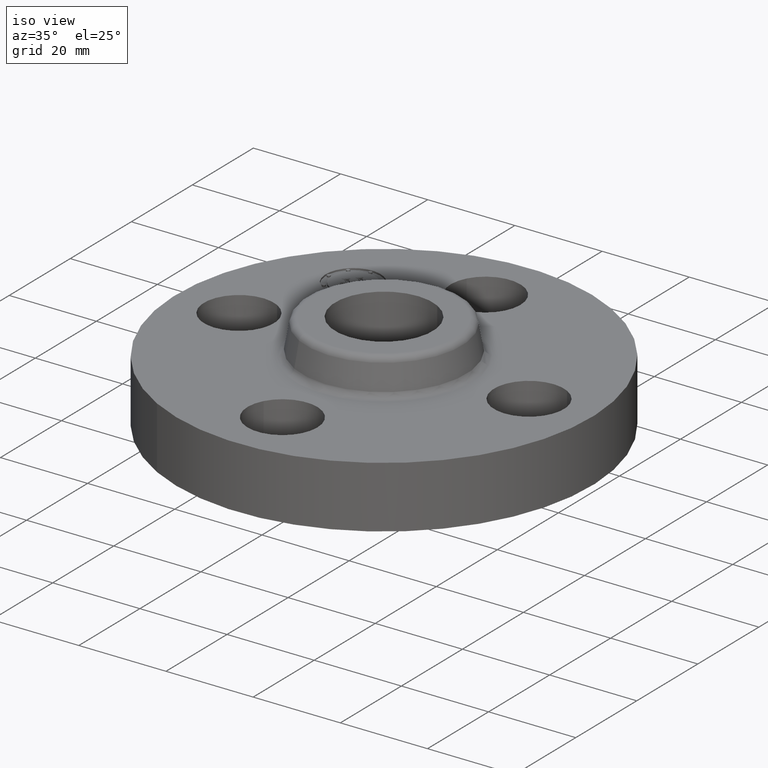
[diagram: clean part render]
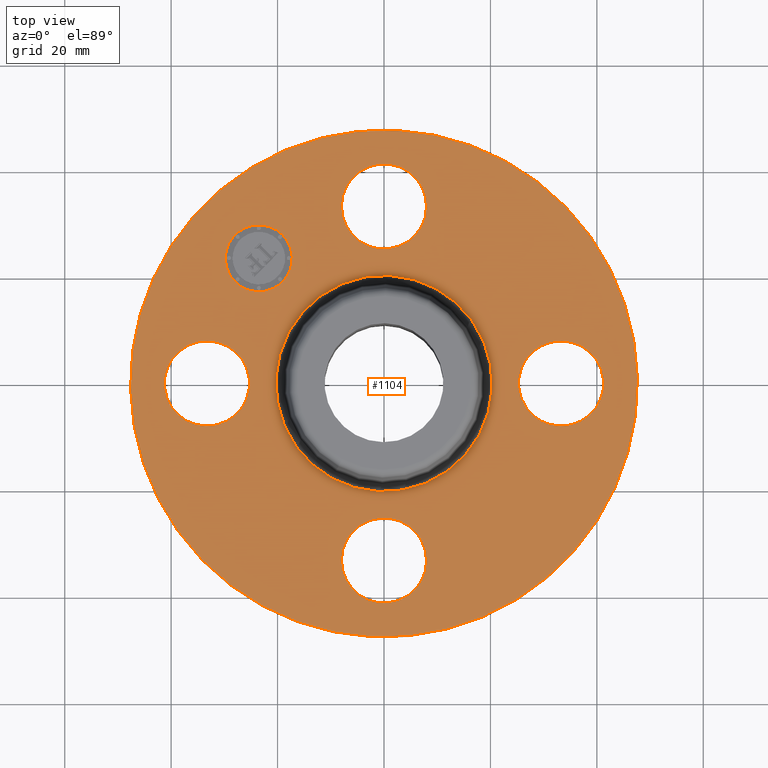
[diagram: tour spotlight — one face highlighted and labeled with its STEP entity id]
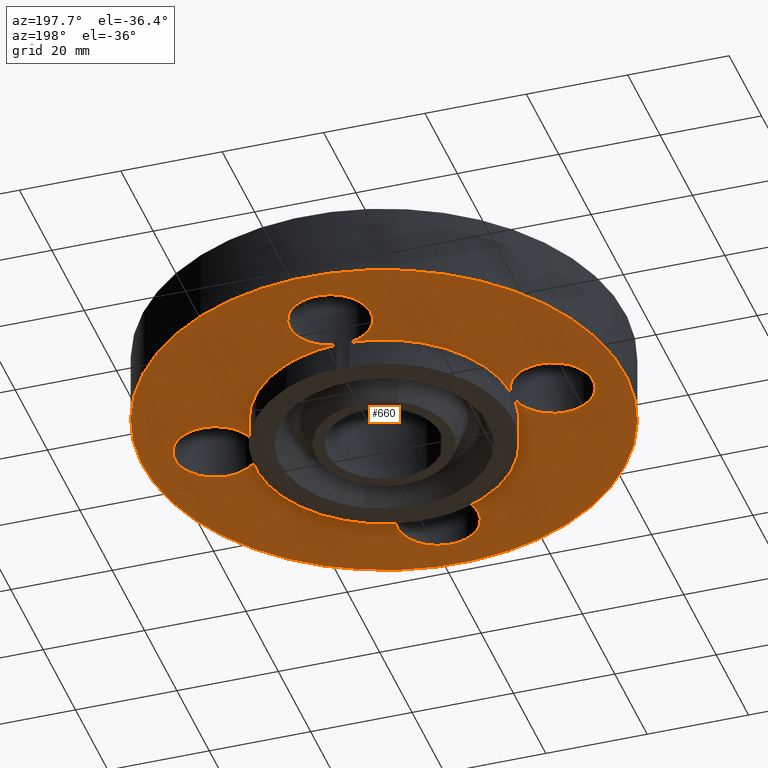
[diagram: tour spotlight — one face highlighted and labeled with its STEP entity id]
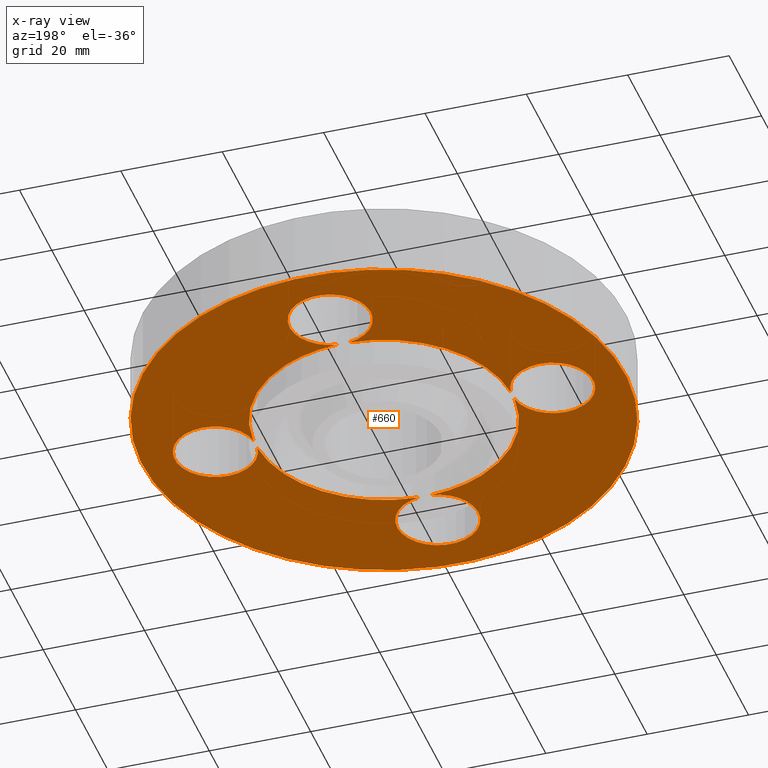
[diagram: x-ray of the same camera — body ghosted, this tour face saturated]
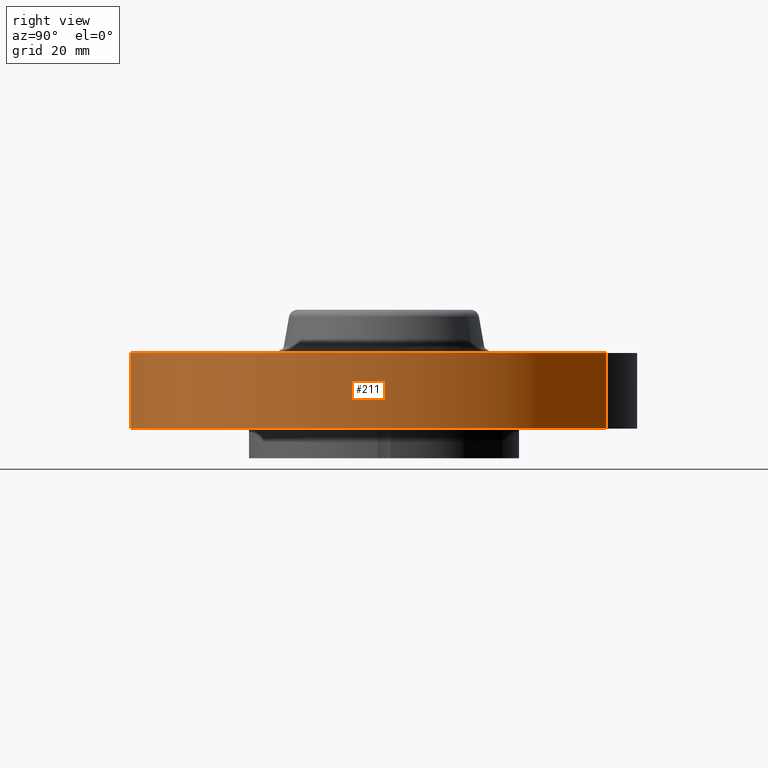
[diagram: tour spotlight — one face highlighted and labeled with its STEP entity id]
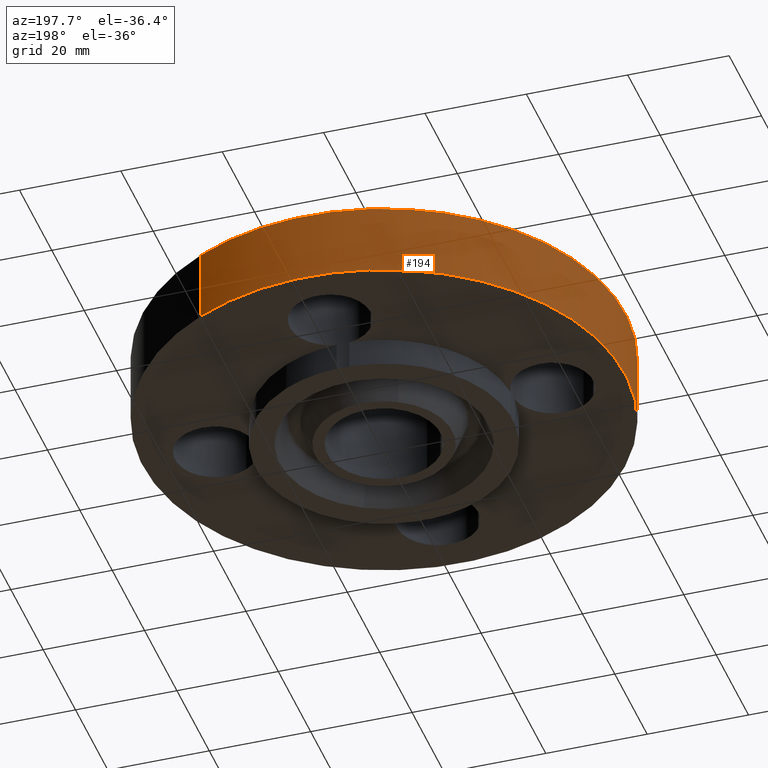
[diagram: tour spotlight — one face highlighted and labeled with its STEP entity id]
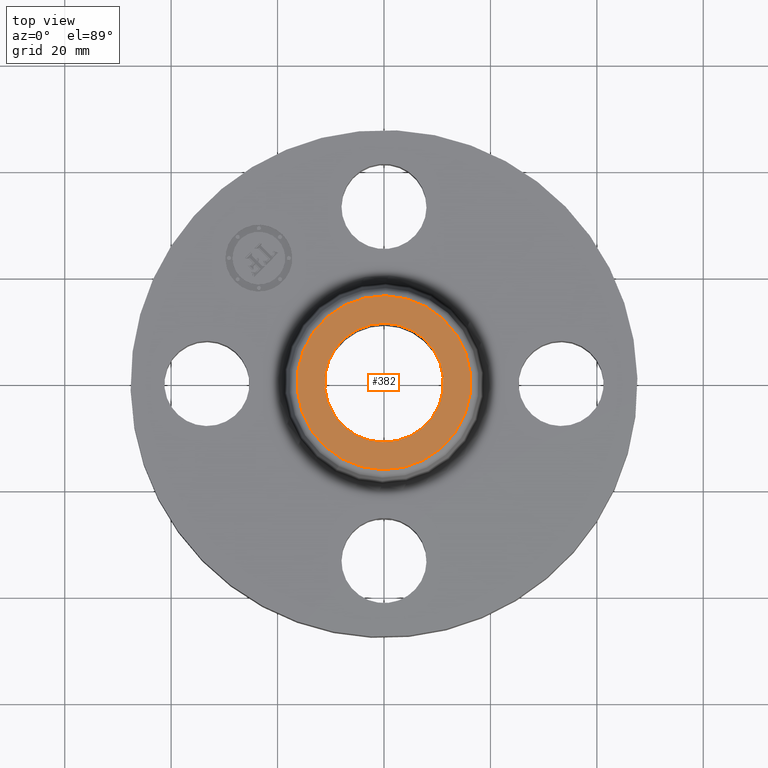
[diagram: tour spotlight — one face highlighted and labeled with its STEP entity id]
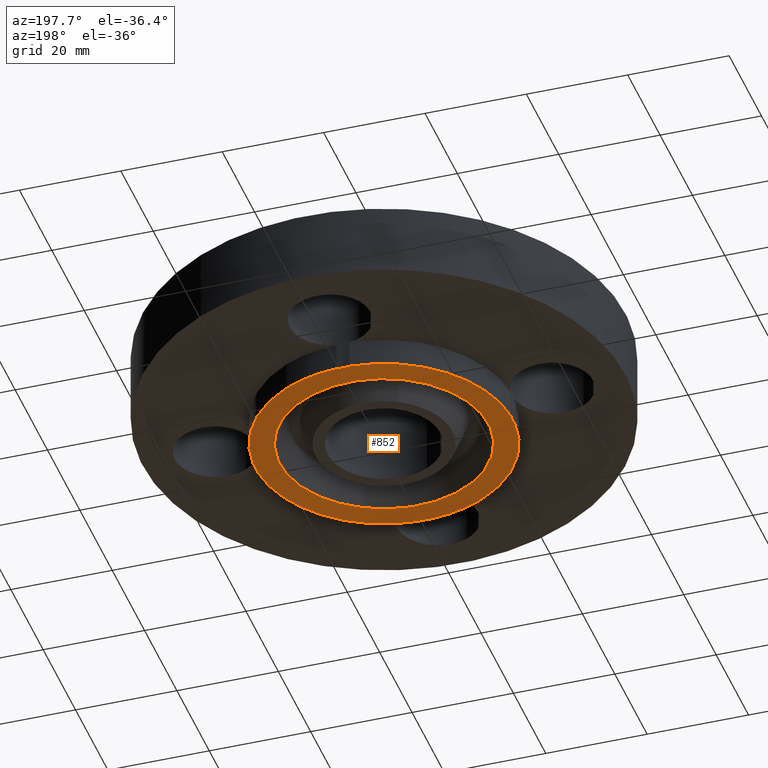
[diagram: tour spotlight — one face highlighted and labeled with its STEP entity id]
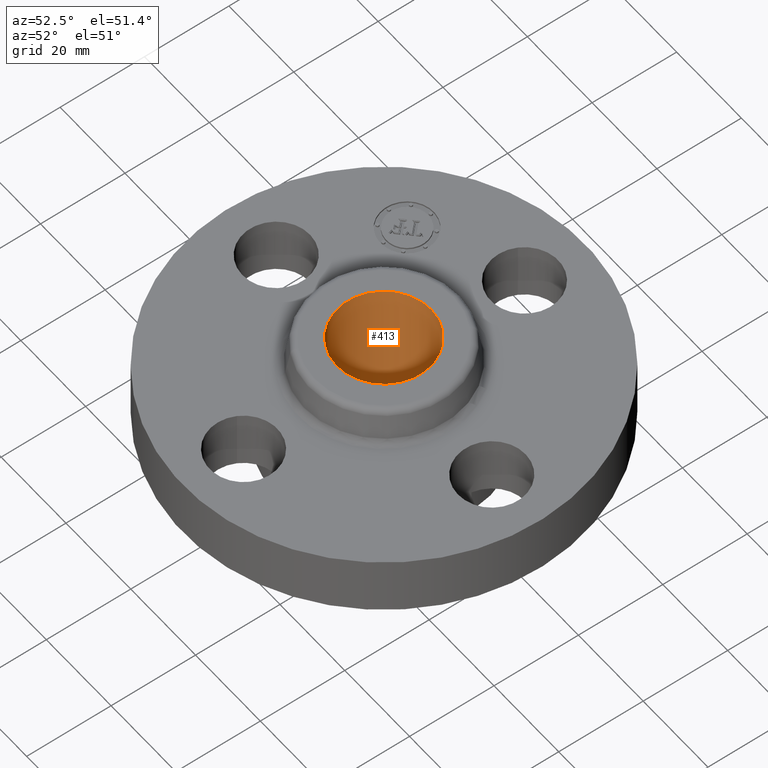
[diagram: tour spotlight — one face highlighted and labeled with its STEP entity id]
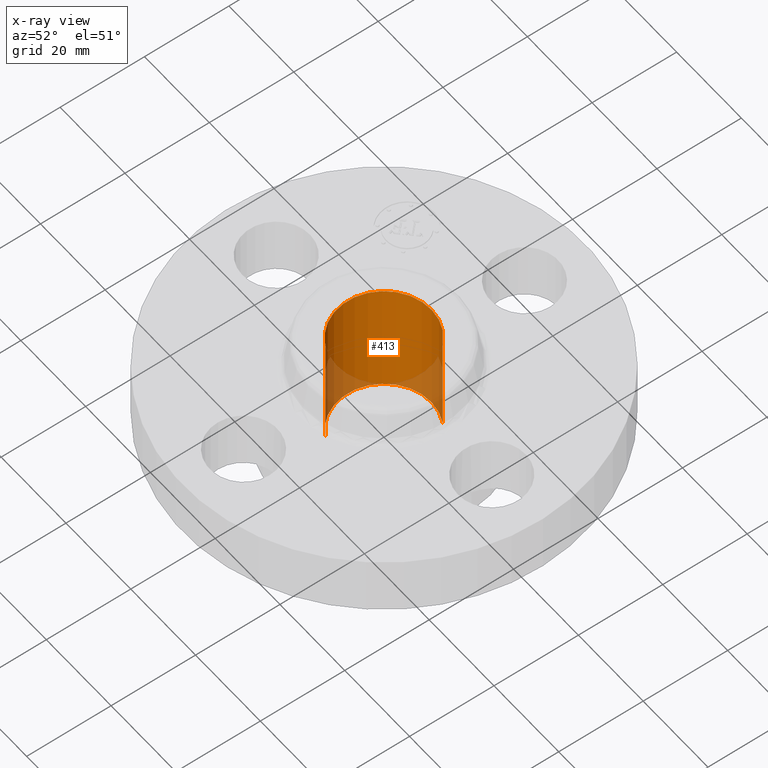
[diagram: x-ray of the same camera — body ghosted, this tour face saturated]
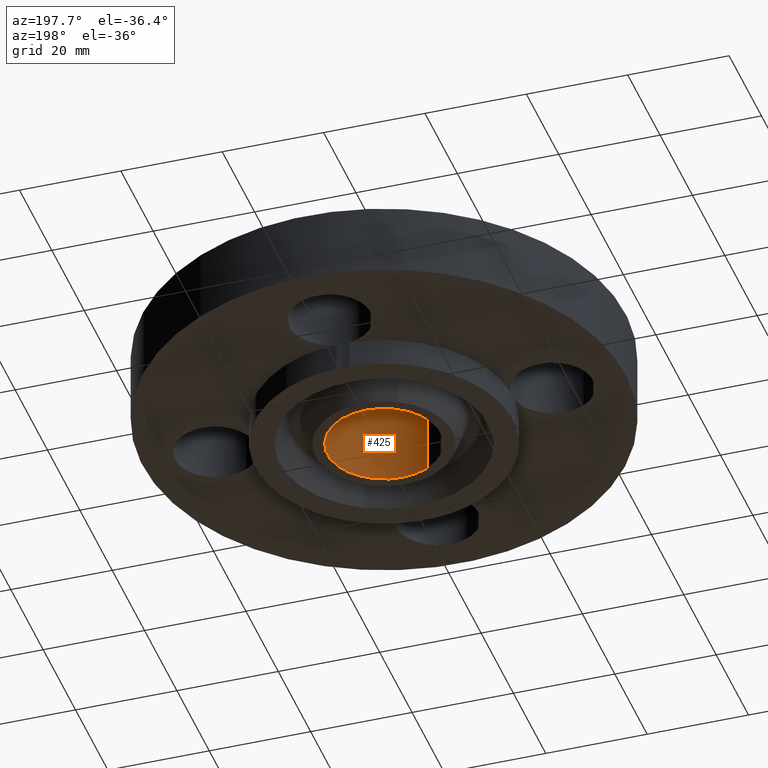
[diagram: tour spotlight — one face highlighted and labeled with its STEP entity id]
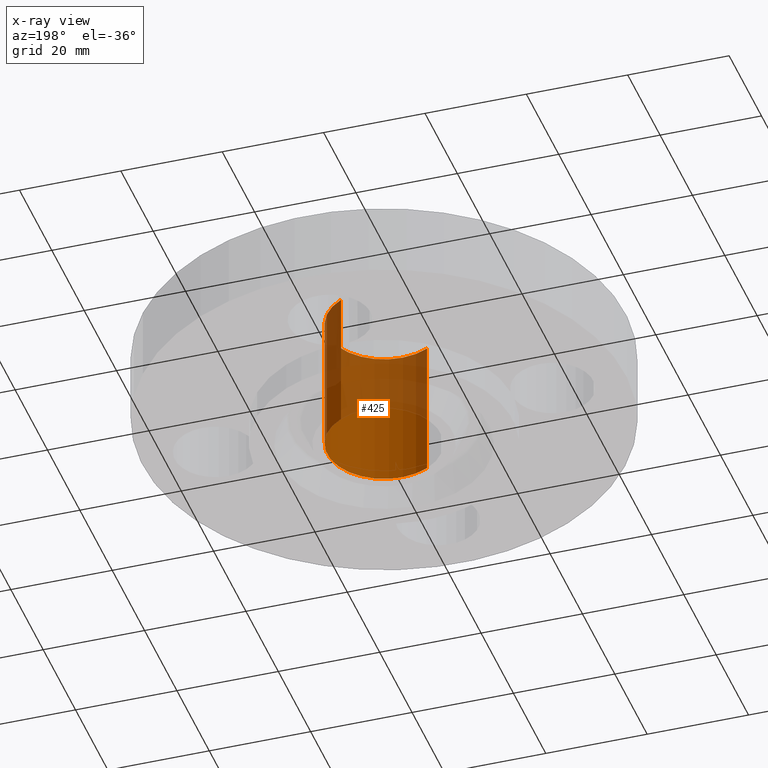
[diagram: x-ray of the same camera — body ghosted, this tour face saturated]
A machine part: a face-by-face anatomy tour. The part has 423 B-rep faces; the first image is the clean iso view, then the 8 largest visible faces are spotlighted one at a time (largest first), each with its STEP entity span.

Face 1 — top view, entity #1104. In plain terms, the highlighted planar face has unit normal (0, 0, -1).
Definition (entity closure, byte-faithful):
#65=AXIS2_PLACEMENT_3D('Circle Axis2P3D',#63,#64,$) ;
#110=AXIS2_PLACEMENT_3D('Circle Axis2P3D',#108,#109,$) ;
#178=AXIS2_PLACEMENT_3D('Circle Axis2P3D',#176,#177,$) ;
#202=AXIS2_PLACEMENT_3D('Circle Axis2P3D',#200,#201,$) ;
#219=AXIS2_PLACEMENT_3D('Circle Axis2P3D',#217,#218,$) ;
#254=AXIS2_PLACEMENT_3D('Circle Axis2P3D',#252,#253,$) ;
#682=AXIS2_PLACEMENT_3D('Circle Axis2P3D',#680,#681,$) ;
#699=AXIS2_PLACEMENT_3D('Circle Axis2P3D',#697,#698,$) ;
#734=AXIS2_PLACEMENT_3D('Circle Axis2P3D',#732,#733,$) ;
#751=AXIS2_PLACEMENT_3D('Circle Axis2P3D',#749,#750,$) ;
#786=AXIS2_PLACEMENT_3D('Circle Axis2P3D',#784,#785,$) ;
#803=AXIS2_PLACEMENT_3D('Circle Axis2P3D',#801,#802,$) ;
#1060=AXIS2_PLACEMENT_3D('Plane Axis2P3D',#1057,#1058,#1059) ;
#1088=AXIS2_PLACEMENT_3D('Circle Axis2P3D',#1086,#1087,$) ;
#1097=AXIS2_PLACEMENT_3D('Circle Axis2P3D',#1095,#1096,$) ;
#46=CARTESIAN_POINT('Vertex',(-0.276438506997,1.46101904467,0.560000000002)) ;
#60=CARTESIAN_POINT('Vertex',(0.276438506997,1.15898095534,0.560000000002)) ;
#63=CARTESIAN_POINT('Axis2P3D Location',(0.,1.31000000001,0.560000000002)) ;
#108=CARTESIAN_POINT('Axis2P3D Location',(0.,1.31000000001,0.560000000002)) ;
#173=CARTESIAN_POINT('Vertex',(-0.898922884886,-1.64546730355,0.560000000002)) ;
#176=CARTESIAN_POINT('Axis2P3D Location',(0.,0.,0.560000000002)) ;
#180=CARTESIAN_POINT('Vertex',(0.898922884886,1.64546730355,0.560000000002)) ;
#200=CARTESIAN_POINT('Axis2P3D Location',(0.,0.,0.560000000002)) ;
#217=CARTESIAN_POINT('Axis2P3D Location',(0.,0.,0.560000000002)) ;
#221=CARTESIAN_POINT('Vertex',(0.383706301512,0.702369673661,0.560000000002)) ;
#223=CARTESIAN_POINT('Vertex',(-0.383706301512,-0.702369673661,0.560000000002)) ;
#252=CARTESIAN_POINT('Axis2P3D Location',(0.,0.,0.560000000002)) ;
#670=CARTESIAN_POINT('Vertex',(1.46101904467,0.276438506997,0.560000000002)) ;
#677=CARTESIAN_POINT('Vertex',(1.15898095534,-0.276438506997,0.560000000002)) ;
#680=CARTESIAN_POINT('Axis2P3D Location',(1.31000000001,8.02143653445E-017,0.560000000002)) ;
#697=CARTESIAN_POINT('Axis2P3D Location',(1.31000000001,8.02143653445E-017,0.560000000002)) ;
#722=CARTESIAN_POINT('Vertex',(0.276438506997,-1.46101904467,0.560000000002)) ;
#729=CARTESIAN_POINT('Vertex',(-0.276438506997,-1.15898095534,0.560000000002)) ;
#732=CARTESIAN_POINT('Axis2P3D Location',(1.60428730689E-016,-1.31000000001,0.560000000002)) ;
#749=CARTESIAN_POINT('Axis2P3D Location',(1.60428730689E-016,-1.31000000001,0.560000000002)) ;
#774=CARTESIAN_POINT('Vertex',(-1.46101904467,-0.276438506997,0.560000000002)) ;
#781=CARTESIAN_POINT('Vertex',(-1.15898095534,0.276438506997,0.560000000002)) ;
#784=CARTESIAN_POINT('Axis2P3D Location',(-1.31000000001,-2.40643096033E-016,0.560000000002)) ;
#801=CARTESIAN_POINT('Axis2P3D Location',(-1.31000000001,-2.40643096033E-016,0.560000000002)) ;
#1057=CARTESIAN_POINT('Axis2P3D Location',(0.,1.87500000001,0.560000000002)) ;
#1086=CARTESIAN_POINT('Axis2P3D Location',(-0.926309883358,0.926309883358,0.560000000002)) ;
#1090=CARTESIAN_POINT('Vertex',(-1.1013188117,0.751300955014,0.560000000002)) ;
#1092=CARTESIAN_POINT('Vertex',(-0.751300955014,1.1013188117,0.560000000002)) ;
#1095=CARTESIAN_POINT('Axis2P3D Location',(-0.926309883358,0.926309883358,0.560000000002)) ;
#64=DIRECTION('Axis2P3D Direction',(0.,-0.,-0.0393700787402)) ;
#109=DIRECTION('Axis2P3D Direction',(0.,-0.,-0.0393700787402)) ;
#177=DIRECTION('Axis2P3D Direction',(0.,0.,-0.0393700787402)) ;
#201=DIRECTION('Axis2P3D Direction',(0.,0.,-0.0393700787402)) ;
#218=DIRECTION('Axis2P3D Direction',(0.,0.,-0.0393700787402)) ;
#253=DIRECTION('Axis2P3D Direction',(0.,0.,-0.0393700787402)) ;
#681=DIRECTION('Axis2P3D Direction',(0.,-0.,-0.0393700787402)) ;
#698=DIRECTION('Axis2P3D Direction',(0.,-0.,-0.0393700787402)) ;
#733=DIRECTION('Axis2P3D Direction',(-0.,0.,-0.0393700787402)) ;
#750=DIRECTION('Axis2P3D Direction',(-0.,0.,-0.0393700787402)) ;
#785=DIRECTION('Axis2P3D Direction',(0.,0.,-0.0393700787402)) ;
#802=DIRECTION('Axis2P3D Direction',(0.,0.,-0.0393700787402)) ;
#1058=DIRECTION('Axis2P3D Direction',(0.,0.,-0.0393700787402)) ;
#1059=DIRECTION('Axis2P3D XDirection',(0.0393700787402,0.,0.)) ;
#1087=DIRECTION('Axis2P3D Direction',(0.,0.,-0.0393700787402)) ;
#1096=DIRECTION('Axis2P3D Direction',(0.,0.,-0.0393700787402)) ;
#1063=ORIENTED_EDGE('',*,*,#204,.F.) ;
#1064=ORIENTED_EDGE('',*,*,#182,.F.) ;
#1067=ORIENTED_EDGE('',*,*,#67,.T.) ;
#1068=ORIENTED_EDGE('',*,*,#112,.T.) ;
#1071=ORIENTED_EDGE('',*,*,#256,.T.) ;
#1072=ORIENTED_EDGE('',*,*,#225,.T.) ;
#1075=ORIENTED_EDGE('',*,*,#701,.T.) ;
#1076=ORIENTED_EDGE('',*,*,#684,.T.) ;
#1079=ORIENTED_EDGE('',*,*,#753,.T.) ;
#1080=ORIENTED_EDGE('',*,*,#736,.T.) ;
#1083=ORIENTED_EDGE('',*,*,#805,.T.) ;
#1084=ORIENTED_EDGE('',*,*,#788,.T.) ;
#1101=ORIENTED_EDGE('',*,*,#1094,.T.) ;
#1102=ORIENTED_EDGE('',*,*,#1099,.T.) ;
#1069=FACE_BOUND('',#1066,.T.) ;
#1073=FACE_BOUND('',#1070,.T.) ;
#1077=FACE_BOUND('',#1074,.T.) ;
#1081=FACE_BOUND('',#1078,.T.) ;
#1085=FACE_BOUND('',#1082,.T.) ;
#1103=FACE_BOUND('',#1100,.T.) ;
#1104=ADVANCED_FACE('PartBody',(#1065,#1069,#1073,#1077,#1081,#1085,#1103),#1061,.F.) ;
#66=CIRCLE('generated circle',#65,0.315000000001) ;
#111=CIRCLE('generated circle',#110,0.315000000001) ;
#179=CIRCLE('generated circle',#178,1.87500000001) ;
#203=CIRCLE('generated circle',#202,1.87500000001) ;
#220=CIRCLE('generated circle',#219,0.800345977874) ;
#255=CIRCLE('generated circle',#254,0.800345977874) ;
#683=CIRCLE('generated circle',#682,0.315000000001) ;
#700=CIRCLE('generated circle',#699,0.315000000001) ;
#735=CIRCLE('generated circle',#734,0.315000000001) ;
#752=CIRCLE('generated circle',#751,0.315000000001) ;
#787=CIRCLE('generated circle',#786,0.315000000001) ;
#804=CIRCLE('generated circle',#803,0.315000000001) ;
#1089=CIRCLE('generated circle',#1088,0.247500000001) ;
#1098=CIRCLE('generated circle',#1097,0.247500000001) ;
#67=EDGE_CURVE('',#47,#61,#66,.T.) ;
#112=EDGE_CURVE('',#61,#47,#111,.T.) ;
#182=EDGE_CURVE('',#174,#181,#179,.T.) ;
#204=EDGE_CURVE('',#181,#174,#203,.T.) ;
#225=EDGE_CURVE('',#222,#224,#220,.T.) ;
#256=EDGE_CURVE('',#224,#222,#255,.T.) ;
#684=EDGE_CURVE('',#671,#678,#683,.T.) ;
#701=EDGE_CURVE('',#678,#671,#700,.T.) ;
#736=EDGE_CURVE('',#723,#730,#735,.T.) ;
#753=EDGE_CURVE('',#730,#723,#752,.T.) ;
#788=EDGE_CURVE('',#775,#782,#787,.T.) ;
#805=EDGE_CURVE('',#782,#775,#804,.T.) ;
#1094=EDGE_CURVE('',#1091,#1093,#1089,.T.) ;
#1099=EDGE_CURVE('',#1093,#1091,#1098,.T.) ;
#1062=EDGE_LOOP('',(#1063,#1064)) ;
#1066=EDGE_LOOP('',(#1067,#1068)) ;
#1070=EDGE_LOOP('',(#1071,#1072)) ;
#1074=EDGE_LOOP('',(#1075,#1076)) ;
#1078=EDGE_LOOP('',(#1079,#1080)) ;
#1082=EDGE_LOOP('',(#1083,#1084)) ;
#1100=EDGE_LOOP('',(#1101,#1102)) ;
#1065=FACE_OUTER_BOUND('',#1062,.T.) ;
#1061=PLANE('',#1060) ;
#47=VERTEX_POINT('',#46) ;
#61=VERTEX_POINT('',#60) ;
#174=VERTEX_POINT('',#173) ;
#181=VERTEX_POINT('',#180) ;
#222=VERTEX_POINT('',#221) ;
#224=VERTEX_POINT('',#223) ;
#671=VERTEX_POINT('',#670) ;
#678=VERTEX_POINT('',#677) ;
#723=VERTEX_POINT('',#722) ;
#730=VERTEX_POINT('',#729) ;
#775=VERTEX_POINT('',#774) ;
#782=VERTEX_POINT('',#781) ;
#1091=VERTEX_POINT('',#1090) ;
#1093=VERTEX_POINT('',#1092) ;

Face 2 — auxiliary view, entity #660. An x-ray twin of the same camera follows (body ghosted, this face saturated) — the face is partly hidden behind the body. In plain terms, the highlighted planar face has unit normal (0, 0, -1).
Definition (entity closure, byte-faithful):
#51=AXIS2_PLACEMENT_3D('Circle Axis2P3D',#49,#50,$) ;
#77=AXIS2_PLACEMENT_3D('Circle Axis2P3D',#75,#76,$) ;
#105=AXIS2_PLACEMENT_3D('Circle Axis2P3D',#103,#104,$) ;
#131=AXIS2_PLACEMENT_3D('Circle Axis2P3D',#129,#130,$) ;
#162=AXIS2_PLACEMENT_3D('Circle Axis2P3D',#160,#161,$) ;
#197=AXIS2_PLACEMENT_3D('Circle Axis2P3D',#195,#196,$) ;
#444=AXIS2_PLACEMENT_3D('Circle Axis2P3D',#442,#443,$) ;
#463=AXIS2_PLACEMENT_3D('Circle Axis2P3D',#461,#462,$) ;
#505=AXIS2_PLACEMENT_3D('Circle Axis2P3D',#503,#504,$) ;
#524=AXIS2_PLACEMENT_3D('Circle Axis2P3D',#522,#523,$) ;
#557=AXIS2_PLACEMENT_3D('Circle Axis2P3D',#555,#556,$) ;
#577=AXIS2_PLACEMENT_3D('Plane Axis2P3D',#574,#575,#576) ;
#585=AXIS2_PLACEMENT_3D('Circle Axis2P3D',#583,#584,$) ;
#592=AXIS2_PLACEMENT_3D('Circle Axis2P3D',#590,#591,$) ;
#599=AXIS2_PLACEMENT_3D('Circle Axis2P3D',#597,#598,$) ;
#604=AXIS2_PLACEMENT_3D('Circle Axis2P3D',#602,#603,$) ;
#611=AXIS2_PLACEMENT_3D('Circle Axis2P3D',#609,#610,$) ;
#618=AXIS2_PLACEMENT_3D('Circle Axis2P3D',#616,#617,$) ;
#623=AXIS2_PLACEMENT_3D('Circle Axis2P3D',#621,#622,$) ;
#630=AXIS2_PLACEMENT_3D('Circle Axis2P3D',#628,#629,$) ;
#637=AXIS2_PLACEMENT_3D('Circle Axis2P3D',#635,#636,$) ;
#44=CARTESIAN_POINT('Vertex',(-0.276438506997,1.46101904467,-6.99353086378E-017)) ;
#49=CARTESIAN_POINT('Axis2P3D Location',(0.,1.31000000001,0.)) ;
#53=CARTESIAN_POINT('Vertex',(0.276438506997,1.15898095534,-6.99353086378E-017)) ;
#75=CARTESIAN_POINT('Axis2P3D Location',(0.,1.31000000001,0.)) ;
#79=CARTESIAN_POINT('Vertex',(0.0488269754871,0.998807251912,6.99353086378E-017)) ;
#100=CARTESIAN_POINT('Vertex',(-0.0488269754871,0.998807251912,6.99353086378E-017)) ;
#103=CARTESIAN_POINT('Axis2P3D Location',(0.,1.31000000001,0.)) ;
#129=CARTESIAN_POINT('Axis2P3D Location',(0.,0.,6.99353086378E-017)) ;
#133=CARTESIAN_POINT('Vertex',(0.479425538606,0.877582561894,6.99353086378E-017)) ;
#160=CARTESIAN_POINT('Axis2P3D Location',(0.,0.,6.99353086378E-017)) ;
#164=CARTESIAN_POINT('Vertex',(-0.898922884886,-1.64546730355,6.99353086378E-017)) ;
#166=CARTESIAN_POINT('Vertex',(0.898922884886,1.64546730355,6.99353086378E-017)) ;
#195=CARTESIAN_POINT('Axis2P3D Location',(0.,0.,6.99353086378E-017)) ;
#439=CARTESIAN_POINT('Vertex',(-0.479425538606,-0.877582561894,6.99353086378E-017)) ;
#442=CARTESIAN_POINT('Axis2P3D Location',(0.,0.,6.99353086378E-017)) ;
#446=CARTESIAN_POINT('Vertex',(-0.998807251912,-0.0488269754871,6.99353086378E-017)) ;
#461=CARTESIAN_POINT('Axis2P3D Location',(0.,0.,6.99353086378E-017)) ;
#465=CARTESIAN_POINT('Vertex',(-0.998807251912,0.0488269754871,6.99353086378E-017)) ;
#500=CARTESIAN_POINT('Vertex',(0.998807251912,-0.0488269754871,6.99353086378E-017)) ;
#503=CARTESIAN_POINT('Axis2P3D Location',(0.,0.,6.99353086378E-017)) ;
#507=CARTESIAN_POINT('Vertex',(0.0488269754871,-0.998807251912,6.99353086378E-017)) ;
#522=CARTESIAN_POINT('Axis2P3D Location',(0.,0.,6.99353086378E-017)) ;
#526=CARTESIAN_POINT('Vertex',(-0.0488269754871,-0.998807251912,6.99353086378E-017)) ;
#555=CARTESIAN_POINT('Axis2P3D Location',(0.,0.,6.99353086378E-017)) ;
#559=CARTESIAN_POINT('Vertex',(0.998807251912,0.0488269754871,6.99353086378E-017)) ;
#574=CARTESIAN_POINT('Axis2P3D Location',(0.,1.,0.)) ;
#583=CARTESIAN_POINT('Axis2P3D Location',(1.31000000001,1.39870617276E-016,0.)) ;
#587=CARTESIAN_POINT('Vertex',(1.15898095534,-0.276438506997,-6.99353086378E-017)) ;
#590=CARTESIAN_POINT('Axis2P3D Location',(1.31000000001,0.,0.)) ;
#594=CARTESIAN_POINT('Vertex',(1.46101904467,0.276438506997,0.)) ;
#597=CARTESIAN_POINT('Axis2P3D Location',(1.31000000001,1.39870617276E-016,0.)) ;
#602=CARTESIAN_POINT('Axis2P3D Location',(-1.31000000001,-1.39870617276E-016,0.)) ;
#606=CARTESIAN_POINT('Vertex',(-1.15898095534,0.276438506997,-6.99353086378E-017)) ;
#609=CARTESIAN_POINT('Axis2P3D Location',(-1.31000000001,-2.79741234551E-016,0.)) ;
#613=CARTESIAN_POINT('Vertex',(-1.46101904467,-0.276438506997,0.)) ;
#616=CARTESIAN_POINT('Axis2P3D Location',(-1.31000000001,-1.39870617276E-016,0.)) ;
#621=CARTESIAN_POINT('Axis2P3D Location',(1.74838271595E-016,-1.31000000001,0.)) ;
#625=CARTESIAN_POINT('Vertex',(-0.276438506997,-1.15898095534,-6.99353086378E-017)) ;
#628=CARTESIAN_POINT('Axis2P3D Location',(0.,-1.31000000001,0.)) ;
#632=CARTESIAN_POINT('Vertex',(0.276438506997,-1.46101904467,0.)) ;
#635=CARTESIAN_POINT('Axis2P3D Location',(1.74838271595E-016,-1.31000000001,0.)) ;
#50=DIRECTION('Axis2P3D Direction',(0.,-0.,-0.0393700787402)) ;
#76=DIRECTION('Axis2P3D Direction',(0.,-0.,-0.0393700787402)) ;
#104=DIRECTION('Axis2P3D Direction',(0.,-0.,-0.0393700787402)) ;
#130=DIRECTION('Axis2P3D Direction',(0.,0.,-0.0393700787402)) ;
#161=DIRECTION('Axis2P3D Direction',(0.,0.,-0.0393700787402)) ;
#196=DIRECTION('Axis2P3D Direction',(0.,0.,-0.0393700787402)) ;
#443=DIRECTION('Axis2P3D Direction',(0.,0.,-0.0393700787402)) ;
#462=DIRECTION('Axis2P3D Direction',(0.,0.,-0.0393700787402)) ;
#504=DIRECTION('Axis2P3D Direction',(0.,0.,-0.0393700787402)) ;
#523=DIRECTION('Axis2P3D Direction',(0.,0.,-0.0393700787402)) ;
#556=DIRECTION('Axis2P3D Direction',(0.,0.,-0.0393700787402)) ;
#575=DIRECTION('Axis2P3D Direction',(0.,0.,-0.0393700787402)) ;
#576=DIRECTION('Axis2P3D XDirection',(0.0393700787402,0.,0.)) ;
#584=DIRECTION('Axis2P3D Direction',(0.,0.,-0.0393700787402)) ;
#591=DIRECTION('Axis2P3D Direction',(0.,0.,-0.0393700787402)) ;
#598=DIRECTION('Axis2P3D Direction',(0.,0.,-0.0393700787402)) ;
#603=DIRECTION('Axis2P3D Direction',(0.,0.,-0.0393700787402)) ;
#610=DIRECTION('Axis2P3D Direction',(0.,0.,-0.0393700787402)) ;
#617=DIRECTION('Axis2P3D Direction',(0.,0.,-0.0393700787402)) ;
#622=DIRECTION('Axis2P3D Direction',(0.,0.,-0.0393700787402)) ;
#629=DIRECTION('Axis2P3D Direction',(0.,0.,-0.0393700787402)) ;
#636=DIRECTION('Axis2P3D Direction',(0.,0.,-0.0393700787402)) ;
#580=ORIENTED_EDGE('',*,*,#168,.T.) ;
#581=ORIENTED_EDGE('',*,*,#199,.T.) ;
#641=ORIENTED_EDGE('',*,*,#509,.F.) ;
#642=ORIENTED_EDGE('',*,*,#589,.F.) ;
#643=ORIENTED_EDGE('',*,*,#596,.F.) ;
#644=ORIENTED_EDGE('',*,*,#601,.F.) ;
#645=ORIENTED_EDGE('',*,*,#561,.F.) ;
#646=ORIENTED_EDGE('',*,*,#135,.F.) ;
#647=ORIENTED_EDGE('',*,*,#81,.F.) ;
#648=ORIENTED_EDGE('',*,*,#55,.F.) ;
#649=ORIENTED_EDGE('',*,*,#107,.F.) ;
#650=ORIENTED_EDGE('',*,*,#467,.F.) ;
#651=ORIENTED_EDGE('',*,*,#608,.F.) ;
#652=ORIENTED_EDGE('',*,*,#615,.F.) ;
#653=ORIENTED_EDGE('',*,*,#620,.F.) ;
#654=ORIENTED_EDGE('',*,*,#448,.F.) ;
#655=ORIENTED_EDGE('',*,*,#528,.F.) ;
#656=ORIENTED_EDGE('',*,*,#627,.F.) ;
#657=ORIENTED_EDGE('',*,*,#634,.F.) ;
#658=ORIENTED_EDGE('',*,*,#639,.F.) ;
#659=FACE_BOUND('',#640,.T.) ;
#660=ADVANCED_FACE('PartBody',(#582,#659),#578,.T.) ;
#52=CIRCLE('generated circle',#51,0.315000000001) ;
#78=CIRCLE('generated circle',#77,0.315000000001) ;
#106=CIRCLE('generated circle',#105,0.315000000001) ;
#132=CIRCLE('generated circle',#131,1.) ;
#163=CIRCLE('generated circle',#162,1.87500000001) ;
#198=CIRCLE('generated circle',#197,1.87500000001) ;
#445=CIRCLE('generated circle',#444,1.) ;
#464=CIRCLE('generated circle',#463,1.) ;
#506=CIRCLE('generated circle',#505,1.) ;
#525=CIRCLE('generated circle',#524,1.) ;
#558=CIRCLE('generated circle',#557,1.) ;
#586=CIRCLE('generated circle',#585,0.315000000001) ;
#593=CIRCLE('generated circle',#592,0.315000000001) ;
#600=CIRCLE('generated circle',#599,0.315000000001) ;
#605=CIRCLE('generated circle',#604,0.315000000001) ;
#612=CIRCLE('generated circle',#611,0.315000000001) ;
#619=CIRCLE('generated circle',#618,0.315000000001) ;
#624=CIRCLE('generated circle',#623,0.315000000001) ;
#631=CIRCLE('generated circle',#630,0.315000000001) ;
#638=CIRCLE('generated circle',#637,0.315000000001) ;
#55=EDGE_CURVE('',#45,#54,#52,.T.) ;
#81=EDGE_CURVE('',#54,#80,#78,.T.) ;
#107=EDGE_CURVE('',#101,#45,#106,.T.) ;
#135=EDGE_CURVE('',#80,#134,#132,.T.) ;
#168=EDGE_CURVE('',#165,#167,#163,.T.) ;
#199=EDGE_CURVE('',#167,#165,#198,.T.) ;
#448=EDGE_CURVE('',#440,#447,#445,.T.) ;
#467=EDGE_CURVE('',#466,#101,#464,.T.) ;
#509=EDGE_CURVE('',#501,#508,#506,.T.) ;
#528=EDGE_CURVE('',#527,#440,#525,.T.) ;
#561=EDGE_CURVE('',#134,#560,#558,.T.) ;
#589=EDGE_CURVE('',#588,#501,#586,.T.) ;
#596=EDGE_CURVE('',#595,#588,#593,.T.) ;
#601=EDGE_CURVE('',#560,#595,#600,.T.) ;
#608=EDGE_CURVE('',#607,#466,#605,.T.) ;
#615=EDGE_CURVE('',#614,#607,#612,.T.) ;
#620=EDGE_CURVE('',#447,#614,#619,.T.) ;
#627=EDGE_CURVE('',#626,#527,#624,.T.) ;
#634=EDGE_CURVE('',#633,#626,#631,.T.) ;
#639=EDGE_CURVE('',#508,#633,#638,.T.) ;
#579=EDGE_LOOP('',(#580,#581)) ;
#640=EDGE_LOOP('',(#641,#642,#643,#644,#645,#646,#647,#648,#649,#650,#651,#652,#653,#654,#655,#656,#657,#658)) ;
#582=FACE_OUTER_BOUND('',#579,.T.) ;
#578=PLANE('',#577) ;
#45=VERTEX_POINT('',#44) ;
#54=VERTEX_POINT('',#53) ;
#80=VERTEX_POINT('',#79) ;
#101=VERTEX_POINT('',#100) ;
#134=VERTEX_POINT('',#133) ;
#165=VERTEX_POINT('',#164) ;
#167=VERTEX_POINT('',#166) ;
#440=VERTEX_POINT('',#439) ;
#447=VERTEX_POINT('',#446) ;
#466=VERTEX_POINT('',#465) ;
#501=VERTEX_POINT('',#500) ;
#508=VERTEX_POINT('',#507) ;
#527=VERTEX_POINT('',#526) ;
#560=VERTEX_POINT('',#559) ;
#588=VERTEX_POINT('',#587) ;
#595=VERTEX_POINT('',#594) ;
#607=VERTEX_POINT('',#606) ;
#614=VERTEX_POINT('',#613) ;
#626=VERTEX_POINT('',#625) ;
#633=VERTEX_POINT('',#632) ;

Face 3 — right view, entity #211. In plain terms, the highlighted cylindrical surface (partial cylindrical patch) has radius 47.625 mm, axis along (0, 0, -1).
Definition (entity closure, byte-faithful):
#158=AXIS2_PLACEMENT_3D('Cylinder Axis2P3D',#155,#156,#157) ;
#197=AXIS2_PLACEMENT_3D('Circle Axis2P3D',#195,#196,$) ;
#202=AXIS2_PLACEMENT_3D('Circle Axis2P3D',#200,#201,$) ;
#155=CARTESIAN_POINT('Axis2P3D Location',(0.,0.,0.330625000001)) ;
#164=CARTESIAN_POINT('Vertex',(-0.898922884886,-1.64546730355,6.99353086378E-017)) ;
#166=CARTESIAN_POINT('Vertex',(0.898922884886,1.64546730355,6.99353086378E-017)) ;
#169=CARTESIAN_POINT('Line Origine',(-0.898922884886,-1.64546730355,0.280000000001)) ;
#173=CARTESIAN_POINT('Vertex',(-0.898922884886,-1.64546730355,0.560000000002)) ;
#180=CARTESIAN_POINT('Vertex',(0.898922884886,1.64546730355,0.560000000002)) ;
#183=CARTESIAN_POINT('Line Origine',(0.898922884886,1.64546730355,0.280000000001)) ;
#195=CARTESIAN_POINT('Axis2P3D Location',(0.,0.,6.99353086378E-017)) ;
#200=CARTESIAN_POINT('Axis2P3D Location',(0.,0.,0.560000000002)) ;
#156=DIRECTION('Axis2P3D Direction',(0.,0.,-0.0393700787402)) ;
#157=DIRECTION('Axis2P3D XDirection',(0.0188750212049,0.0345504945626,0.)) ;
#170=DIRECTION('Vector Direction',(0.,0.,-0.0393700787402)) ;
#184=DIRECTION('Vector Direction',(0.,0.,-0.0393700787402)) ;
#196=DIRECTION('Axis2P3D Direction',(0.,0.,-0.0393700787402)) ;
#201=DIRECTION('Axis2P3D Direction',(0.,0.,-0.0393700787402)) ;
#171=VECTOR('Line Direction',#170,0.0393700787402) ;
#185=VECTOR('Line Direction',#184,0.0393700787402) ;
#206=ORIENTED_EDGE('',*,*,#199,.F.) ;
#207=ORIENTED_EDGE('',*,*,#187,.T.) ;
#208=ORIENTED_EDGE('',*,*,#204,.T.) ;
#209=ORIENTED_EDGE('',*,*,#175,.F.) ;
#211=ADVANCED_FACE('PartBody',(#210),#159,.T.) ;
#198=CIRCLE('generated circle',#197,1.87500000001) ;
#203=CIRCLE('generated circle',#202,1.87500000001) ;
#159=CYLINDRICAL_SURFACE('generated cylinder',#158,1.87500000001) ;
#175=EDGE_CURVE('',#165,#174,#172,.F.) ;
#187=EDGE_CURVE('',#167,#181,#186,.F.) ;
#199=EDGE_CURVE('',#167,#165,#198,.T.) ;
#204=EDGE_CURVE('',#181,#174,#203,.T.) ;
#205=EDGE_LOOP('',(#206,#207,#208,#209)) ;
#210=FACE_OUTER_BOUND('',#205,.T.) ;
#172=LINE('Line',#169,#171) ;
#186=LINE('Line',#183,#185) ;
#165=VERTEX_POINT('',#164) ;
#167=VERTEX_POINT('',#166) ;
#174=VERTEX_POINT('',#173) ;
#181=VERTEX_POINT('',#180) ;

Face 4 — auxiliary view, entity #194. In plain terms, the highlighted cylindrical surface (partial cylindrical patch) has radius 47.625 mm, axis along (0, 0, -1).
Definition (entity closure, byte-faithful):
#158=AXIS2_PLACEMENT_3D('Cylinder Axis2P3D',#155,#156,#157) ;
#162=AXIS2_PLACEMENT_3D('Circle Axis2P3D',#160,#161,$) ;
#178=AXIS2_PLACEMENT_3D('Circle Axis2P3D',#176,#177,$) ;
#155=CARTESIAN_POINT('Axis2P3D Location',(0.,0.,0.330625000001)) ;
#160=CARTESIAN_POINT('Axis2P3D Location',(0.,0.,6.99353086378E-017)) ;
#164=CARTESIAN_POINT('Vertex',(-0.898922884886,-1.64546730355,6.99353086378E-017)) ;
#166=CARTESIAN_POINT('Vertex',(0.898922884886,1.64546730355,6.99353086378E-017)) ;
#169=CARTESIAN_POINT('Line Origine',(-0.898922884886,-1.64546730355,0.280000000001)) ;
#173=CARTESIAN_POINT('Vertex',(-0.898922884886,-1.64546730355,0.560000000002)) ;
#176=CARTESIAN_POINT('Axis2P3D Location',(0.,0.,0.560000000002)) ;
#180=CARTESIAN_POINT('Vertex',(0.898922884886,1.64546730355,0.560000000002)) ;
#183=CARTESIAN_POINT('Line Origine',(0.898922884886,1.64546730355,0.280000000001)) ;
#156=DIRECTION('Axis2P3D Direction',(0.,0.,-0.0393700787402)) ;
#157=DIRECTION('Axis2P3D XDirection',(0.0188750212049,0.0345504945626,0.)) ;
#161=DIRECTION('Axis2P3D Direction',(0.,0.,-0.0393700787402)) ;
#170=DIRECTION('Vector Direction',(0.,0.,-0.0393700787402)) ;
#177=DIRECTION('Axis2P3D Direction',(0.,0.,-0.0393700787402)) ;
#184=DIRECTION('Vector Direction',(0.,0.,-0.0393700787402)) ;
#171=VECTOR('Line Direction',#170,0.0393700787402) ;
#185=VECTOR('Line Direction',#184,0.0393700787402) ;
#189=ORIENTED_EDGE('',*,*,#168,.F.) ;
#190=ORIENTED_EDGE('',*,*,#175,.T.) ;
#191=ORIENTED_EDGE('',*,*,#182,.T.) ;
#192=ORIENTED_EDGE('',*,*,#187,.F.) ;
#194=ADVANCED_FACE('PartBody',(#193),#159,.T.) ;
#163=CIRCLE('generated circle',#162,1.87500000001) ;
#179=CIRCLE('generated circle',#178,1.87500000001) ;
#159=CYLINDRICAL_SURFACE('generated cylinder',#158,1.87500000001) ;
#168=EDGE_CURVE('',#165,#167,#163,.T.) ;
#175=EDGE_CURVE('',#165,#174,#172,.F.) ;
#182=EDGE_CURVE('',#174,#181,#179,.T.) ;
#187=EDGE_CURVE('',#167,#181,#186,.F.) ;
#188=EDGE_LOOP('',(#189,#190,#191,#192)) ;
#193=FACE_OUTER_BOUND('',#188,.T.) ;
#172=LINE('Line',#169,#171) ;
#186=LINE('Line',#183,#185) ;
#165=VERTEX_POINT('',#164) ;
#167=VERTEX_POINT('',#166) ;
#174=VERTEX_POINT('',#173) ;
#181=VERTEX_POINT('',#180) ;

Face 5 — top view, entity #382. In plain terms, the highlighted planar face has unit normal (0, 0, -1).
Definition (entity closure, byte-faithful):
#326=AXIS2_PLACEMENT_3D('Circle Axis2P3D',#324,#325,$) ;
#345=AXIS2_PLACEMENT_3D('Circle Axis2P3D',#343,#344,$) ;
#358=AXIS2_PLACEMENT_3D('Plane Axis2P3D',#355,#356,#357) ;
#366=AXIS2_PLACEMENT_3D('Circle Axis2P3D',#364,#365,$) ;
#375=AXIS2_PLACEMENT_3D('Circle Axis2P3D',#373,#374,$) ;
#321=CARTESIAN_POINT('Vertex',(0.308380595934,0.564486894472,0.880000000004)) ;
#324=CARTESIAN_POINT('Axis2P3D Location',(0.,0.,0.880000000004)) ;
#328=CARTESIAN_POINT('Vertex',(-0.308380595934,-0.564486894472,0.880000000004)) ;
#343=CARTESIAN_POINT('Axis2P3D Location',(0.,0.,0.880000000004)) ;
#355=CARTESIAN_POINT('Axis2P3D Location',(0.,0.643229388305,0.880000000004)) ;
#364=CARTESIAN_POINT('Axis2P3D Location',(0.,0.,0.880000000004)) ;
#368=CARTESIAN_POINT('Vertex',(-0.210947236987,-0.386136327233,0.880000000004)) ;
#370=CARTESIAN_POINT('Vertex',(0.210947236987,0.386136327233,0.880000000004)) ;
#373=CARTESIAN_POINT('Axis2P3D Location',(0.,0.,0.880000000004)) ;
#325=DIRECTION('Axis2P3D Direction',(0.,0.,-0.0393700787402)) ;
#344=DIRECTION('Axis2P3D Direction',(0.,0.,-0.0393700787402)) ;
#356=DIRECTION('Axis2P3D Direction',(0.,0.,-0.0393700787402)) ;
#357=DIRECTION('Axis2P3D XDirection',(0.0393700787402,0.,0.)) ;
#365=DIRECTION('Axis2P3D Direction',(0.,0.,-0.0393700787402)) ;
#374=DIRECTION('Axis2P3D Direction',(0.,0.,-0.0393700787402)) ;
#361=ORIENTED_EDGE('',*,*,#330,.F.) ;
#362=ORIENTED_EDGE('',*,*,#347,.F.) ;
#379=ORIENTED_EDGE('',*,*,#372,.T.) ;
#380=ORIENTED_EDGE('',*,*,#377,.T.) ;
#381=FACE_BOUND('',#378,.T.) ;
#382=ADVANCED_FACE('PartBody',(#363,#381),#359,.F.) ;
#327=CIRCLE('generated circle',#326,0.643229388305) ;
#346=CIRCLE('generated circle',#345,0.643229388305) ;
#367=CIRCLE('generated circle',#366,0.440000000002) ;
#376=CIRCLE('generated circle',#375,0.440000000002) ;
#330=EDGE_CURVE('',#322,#329,#327,.T.) ;
#347=EDGE_CURVE('',#329,#322,#346,.T.) ;
#372=EDGE_CURVE('',#369,#371,#367,.T.) ;
#377=EDGE_CURVE('',#371,#369,#376,.T.) ;
#360=EDGE_LOOP('',(#361,#362)) ;
#378=EDGE_LOOP('',(#379,#380)) ;
#363=FACE_OUTER_BOUND('',#360,.T.) ;
#359=PLANE('',#358) ;
#322=VERTEX_POINT('',#321) ;
#329=VERTEX_POINT('',#328) ;
#369=VERTEX_POINT('',#368) ;
#371=VERTEX_POINT('',#370) ;

Face 6 — auxiliary view, entity #852. In plain terms, the highlighted planar face has unit normal (0, 0, -1).
Definition (entity closure, byte-faithful):
#91=AXIS2_PLACEMENT_3D('Circle Axis2P3D',#89,#90,$) ;
#145=AXIS2_PLACEMENT_3D('Circle Axis2P3D',#143,#144,$) ;
#428=AXIS2_PLACEMENT_3D('Circle Axis2P3D',#426,#427,$) ;
#470=AXIS2_PLACEMENT_3D('Circle Axis2P3D',#468,#469,$) ;
#489=AXIS2_PLACEMENT_3D('Circle Axis2P3D',#487,#488,$) ;
#531=AXIS2_PLACEMENT_3D('Circle Axis2P3D',#529,#530,$) ;
#550=AXIS2_PLACEMENT_3D('Circle Axis2P3D',#548,#549,$) ;
#694=AXIS2_PLACEMENT_3D('Circle Axis2P3D',#692,#693,$) ;
#746=AXIS2_PLACEMENT_3D('Circle Axis2P3D',#744,#745,$) ;
#798=AXIS2_PLACEMENT_3D('Circle Axis2P3D',#796,#797,$) ;
#820=AXIS2_PLACEMENT_3D('Plane Axis2P3D',#817,#818,#819) ;
#836=AXIS2_PLACEMENT_3D('Circle Axis2P3D',#834,#835,$) ;
#845=AXIS2_PLACEMENT_3D('Circle Axis2P3D',#843,#844,$) ;
#86=CARTESIAN_POINT('Vertex',(0.0488269754871,0.998807251912,-0.218750000001)) ;
#89=CARTESIAN_POINT('Axis2P3D Location',(0.,1.31000000001,-0.218750000001)) ;
#93=CARTESIAN_POINT('Vertex',(-0.0488269754871,0.998807251912,-0.218750000001)) ;
#140=CARTESIAN_POINT('Vertex',(0.479425538606,0.877582561894,-0.218750000001)) ;
#143=CARTESIAN_POINT('Axis2P3D Location',(0.,0.,-0.218750000001)) ;
#426=CARTESIAN_POINT('Axis2P3D Location',(0.,0.,-0.218750000001)) ;
#430=CARTESIAN_POINT('Vertex',(-0.479425538606,-0.877582561894,-0.218750000001)) ;
#432=CARTESIAN_POINT('Vertex',(-0.998807251912,-0.0488269754871,-0.218750000001)) ;
#468=CARTESIAN_POINT('Axis2P3D Location',(0.,0.,-0.218750000001)) ;
#472=CARTESIAN_POINT('Vertex',(-0.998807251912,0.0488269754871,-0.218750000001)) ;
#487=CARTESIAN_POINT('Axis2P3D Location',(0.,0.,-0.218750000001)) ;
#491=CARTESIAN_POINT('Vertex',(0.998807251912,-0.0488269754871,-0.218750000001)) ;
#493=CARTESIAN_POINT('Vertex',(0.0488269754871,-0.998807251912,-0.218750000001)) ;
#529=CARTESIAN_POINT('Axis2P3D Location',(0.,0.,-0.218750000001)) ;
#533=CARTESIAN_POINT('Vertex',(-0.0488269754871,-0.998807251912,-0.218750000001)) ;
#548=CARTESIAN_POINT('Axis2P3D Location',(0.,0.,-0.218750000001)) ;
#552=CARTESIAN_POINT('Vertex',(0.998807251912,0.0488269754871,-0.218750000001)) ;
#692=CARTESIAN_POINT('Axis2P3D Location',(1.31000000001,8.02143653445E-017,-0.218750000001)) ;
#744=CARTESIAN_POINT('Axis2P3D Location',(1.60428730689E-016,-1.31000000001,-0.218750000001)) ;
#796=CARTESIAN_POINT('Axis2P3D Location',(-1.31000000001,-2.40643096033E-016,-0.218750000001)) ;
#817=CARTESIAN_POINT('Axis2P3D Location',(0.,0.440000000002,-0.218750000001)) ;
#834=CARTESIAN_POINT('Axis2P3D Location',(3.49676543189E-017,-1.39870617276E-016,-0.218750000001)) ;
#838=CARTESIAN_POINT('Vertex',(0.389533250117,-0.713035831539,-0.218750000001)) ;
#840=CARTESIAN_POINT('Vertex',(-0.389533250117,0.713035831539,-0.218750000001)) ;
#843=CARTESIAN_POINT('Axis2P3D Location',(3.49676543189E-017,1.39870617276E-016,-0.218750000001)) ;
#90=DIRECTION('Axis2P3D Direction',(0.,-0.,-0.0393700787402)) ;
#144=DIRECTION('Axis2P3D Direction',(0.,0.,-0.0393700787402)) ;
#427=DIRECTION('Axis2P3D Direction',(0.,0.,-0.0393700787402)) ;
#469=DIRECTION('Axis2P3D Direction',(0.,0.,-0.0393700787402)) ;
#488=DIRECTION('Axis2P3D Direction',(0.,0.,-0.0393700787402)) ;
#530=DIRECTION('Axis2P3D Direction',(0.,0.,-0.0393700787402)) ;
#549=DIRECTION('Axis2P3D Direction',(0.,0.,-0.0393700787402)) ;
#693=DIRECTION('Axis2P3D Direction',(0.,-0.,-0.0393700787402)) ;
#745=DIRECTION('Axis2P3D Direction',(-0.,0.,-0.0393700787402)) ;
#797=DIRECTION('Axis2P3D Direction',(0.,0.,-0.0393700787402)) ;
#818=DIRECTION('Axis2P3D Direction',(0.,0.,-0.0393700787402)) ;
#819=DIRECTION('Axis2P3D XDirection',(0.0393700787402,0.,0.)) ;
#835=DIRECTION('Axis2P3D Direction',(0.,0.,-0.0393700787402)) ;
#844=DIRECTION('Axis2P3D Direction',(0.,0.,-0.0393700787402)) ;
#823=ORIENTED_EDGE('',*,*,#495,.T.) ;
#824=ORIENTED_EDGE('',*,*,#748,.F.) ;
#825=ORIENTED_EDGE('',*,*,#535,.T.) ;
#826=ORIENTED_EDGE('',*,*,#434,.T.) ;
#827=ORIENTED_EDGE('',*,*,#800,.F.) ;
#828=ORIENTED_EDGE('',*,*,#474,.T.) ;
#829=ORIENTED_EDGE('',*,*,#95,.F.) ;
#830=ORIENTED_EDGE('',*,*,#147,.T.) ;
#831=ORIENTED_EDGE('',*,*,#554,.T.) ;
#832=ORIENTED_EDGE('',*,*,#696,.F.) ;
#849=ORIENTED_EDGE('',*,*,#842,.F.) ;
#850=ORIENTED_EDGE('',*,*,#847,.F.) ;
#851=FACE_BOUND('',#848,.T.) ;
#852=ADVANCED_FACE('PartBody',(#833,#851),#821,.T.) ;
#92=CIRCLE('generated circle',#91,0.315000000001) ;
#146=CIRCLE('generated circle',#145,1.) ;
#429=CIRCLE('generated circle',#428,1.) ;
#471=CIRCLE('generated circle',#470,1.) ;
#490=CIRCLE('generated circle',#489,1.) ;
#532=CIRCLE('generated circle',#531,1.) ;
#551=CIRCLE('generated circle',#550,1.) ;
#695=CIRCLE('generated circle',#694,0.315000000001) ;
#747=CIRCLE('generated circle',#746,0.315000000001) ;
#799=CIRCLE('generated circle',#798,0.315000000001) ;
#837=CIRCLE('generated circle',#836,0.812500000003) ;
#846=CIRCLE('generated circle',#845,0.812500000003) ;
#95=EDGE_CURVE('',#87,#94,#92,.T.) ;
#147=EDGE_CURVE('',#87,#141,#146,.T.) ;
#434=EDGE_CURVE('',#431,#433,#429,.T.) ;
#474=EDGE_CURVE('',#473,#94,#471,.T.) ;
#495=EDGE_CURVE('',#492,#494,#490,.T.) ;
#535=EDGE_CURVE('',#534,#431,#532,.T.) ;
#554=EDGE_CURVE('',#141,#553,#551,.T.) ;
#696=EDGE_CURVE('',#492,#553,#695,.T.) ;
#748=EDGE_CURVE('',#534,#494,#747,.T.) ;
#800=EDGE_CURVE('',#473,#433,#799,.T.) ;
#842=EDGE_CURVE('',#839,#841,#837,.T.) ;
#847=EDGE_CURVE('',#841,#839,#846,.T.) ;
#822=EDGE_LOOP('',(#823,#824,#825,#826,#827,#828,#829,#830,#831,#832)) ;
#848=EDGE_LOOP('',(#849,#850)) ;
#833=FACE_OUTER_BOUND('',#822,.T.) ;
#821=PLANE('',#820) ;
#87=VERTEX_POINT('',#86) ;
#94=VERTEX_POINT('',#93) ;
#141=VERTEX_POINT('',#140) ;
#431=VERTEX_POINT('',#430) ;
#433=VERTEX_POINT('',#432) ;
#473=VERTEX_POINT('',#472) ;
#492=VERTEX_POINT('',#491) ;
#494=VERTEX_POINT('',#493) ;
#534=VERTEX_POINT('',#533) ;
#553=VERTEX_POINT('',#552) ;
#839=VERTEX_POINT('',#838) ;
#841=VERTEX_POINT('',#840) ;

Face 7 — auxiliary view, entity #413. An x-ray twin of the same camera follows (body ghosted, this face saturated) — the face is partly hidden behind the body. In plain terms, the highlighted cylindrical surface (partial cylindrical patch) has radius 11.176 mm, axis along (0, 0, -1).
Definition (entity closure, byte-faithful):
#366=AXIS2_PLACEMENT_3D('Circle Axis2P3D',#364,#365,$) ;
#386=AXIS2_PLACEMENT_3D('Cylinder Axis2P3D',#383,#384,#385) ;
#397=AXIS2_PLACEMENT_3D('Circle Axis2P3D',#395,#396,$) ;
#364=CARTESIAN_POINT('Axis2P3D Location',(0.,0.,0.880000000004)) ;
#368=CARTESIAN_POINT('Vertex',(-0.210947236987,-0.386136327233,0.880000000004)) ;
#370=CARTESIAN_POINT('Vertex',(0.210947236987,0.386136327233,0.880000000004)) ;
#383=CARTESIAN_POINT('Axis2P3D Location',(0.,0.,0.330625000001)) ;
#388=CARTESIAN_POINT('Line Origine',(-0.210947236987,-0.386136327233,0.330625000001)) ;
#392=CARTESIAN_POINT('Vertex',(-0.210947236987,-0.386136327233,-0.218750000001)) ;
#395=CARTESIAN_POINT('Axis2P3D Location',(0.,0.,-0.218750000001)) ;
#399=CARTESIAN_POINT('Vertex',(0.210947236987,0.386136327233,-0.218750000001)) ;
#402=CARTESIAN_POINT('Line Origine',(0.210947236987,0.386136327233,0.330625000001)) ;
#365=DIRECTION('Axis2P3D Direction',(0.,0.,-0.0393700787402)) ;
#384=DIRECTION('Axis2P3D Direction',(0.,0.,-0.0393700787402)) ;
#385=DIRECTION('Axis2P3D XDirection',(0.0188750212049,0.0345504945626,0.)) ;
#389=DIRECTION('Vector Direction',(0.,0.,-0.0393700787402)) ;
#396=DIRECTION('Axis2P3D Direction',(0.,0.,-0.0393700787402)) ;
#403=DIRECTION('Vector Direction',(0.,0.,-0.0393700787402)) ;
#390=VECTOR('Line Direction',#389,0.0393700787402) ;
#404=VECTOR('Line Direction',#403,0.0393700787402) ;
#408=ORIENTED_EDGE('',*,*,#372,.F.) ;
#409=ORIENTED_EDGE('',*,*,#394,.T.) ;
#410=ORIENTED_EDGE('',*,*,#401,.T.) ;
#411=ORIENTED_EDGE('',*,*,#406,.F.) ;
#413=ADVANCED_FACE('PartBody',(#412),#387,.F.) ;
#367=CIRCLE('generated circle',#366,0.440000000002) ;
#398=CIRCLE('generated circle',#397,0.440000000002) ;
#387=CYLINDRICAL_SURFACE('generated cylinder',#386,0.440000000002) ;
#372=EDGE_CURVE('',#369,#371,#367,.T.) ;
#394=EDGE_CURVE('',#369,#393,#391,.T.) ;
#401=EDGE_CURVE('',#393,#400,#398,.T.) ;
#406=EDGE_CURVE('',#371,#400,#405,.T.) ;
#407=EDGE_LOOP('',(#408,#409,#410,#411)) ;
#412=FACE_OUTER_BOUND('',#407,.T.) ;
#391=LINE('Line',#388,#390) ;
#405=LINE('Line',#402,#404) ;
#369=VERTEX_POINT('',#368) ;
#371=VERTEX_POINT('',#370) ;
#393=VERTEX_POINT('',#392) ;
#400=VERTEX_POINT('',#399) ;

Face 8 — auxiliary view, entity #425. An x-ray twin of the same camera follows (body ghosted, this face saturated) — the face is partly hidden behind the body. In plain terms, the highlighted cylindrical surface (partial cylindrical patch) has radius 11.176 mm, axis along (0, 0, -1).
Definition (entity closure, byte-faithful):
#375=AXIS2_PLACEMENT_3D('Circle Axis2P3D',#373,#374,$) ;
#386=AXIS2_PLACEMENT_3D('Cylinder Axis2P3D',#383,#384,#385) ;
#416=AXIS2_PLACEMENT_3D('Circle Axis2P3D',#414,#415,$) ;
#368=CARTESIAN_POINT('Vertex',(-0.210947236987,-0.386136327233,0.880000000004)) ;
#370=CARTESIAN_POINT('Vertex',(0.210947236987,0.386136327233,0.880000000004)) ;
#373=CARTESIAN_POINT('Axis2P3D Location',(0.,0.,0.880000000004)) ;
#383=CARTESIAN_POINT('Axis2P3D Location',(0.,0.,0.330625000001)) ;
#388=CARTESIAN_POINT('Line Origine',(-0.210947236987,-0.386136327233,0.330625000001)) ;
#392=CARTESIAN_POINT('Vertex',(-0.210947236987,-0.386136327233,-0.218750000001)) ;
#399=CARTESIAN_POINT('Vertex',(0.210947236987,0.386136327233,-0.218750000001)) ;
#402=CARTESIAN_POINT('Line Origine',(0.210947236987,0.386136327233,0.330625000001)) ;
#414=CARTESIAN_POINT('Axis2P3D Location',(0.,0.,-0.218750000001)) ;
#374=DIRECTION('Axis2P3D Direction',(0.,0.,-0.0393700787402)) ;
#384=DIRECTION('Axis2P3D Direction',(0.,0.,-0.0393700787402)) ;
#385=DIRECTION('Axis2P3D XDirection',(0.0188750212049,0.0345504945626,0.)) ;
#389=DIRECTION('Vector Direction',(0.,0.,-0.0393700787402)) ;
#403=DIRECTION('Vector Direction',(0.,0.,-0.0393700787402)) ;
#415=DIRECTION('Axis2P3D Direction',(0.,0.,-0.0393700787402)) ;
#390=VECTOR('Line Direction',#389,0.0393700787402) ;
#404=VECTOR('Line Direction',#403,0.0393700787402) ;
#420=ORIENTED_EDGE('',*,*,#377,.F.) ;
#421=ORIENTED_EDGE('',*,*,#406,.T.) ;
#422=ORIENTED_EDGE('',*,*,#418,.T.) ;
#423=ORIENTED_EDGE('',*,*,#394,.F.) ;
#425=ADVANCED_FACE('PartBody',(#424),#387,.F.) ;
#376=CIRCLE('generated circle',#375,0.440000000002) ;
#417=CIRCLE('generated circle',#416,0.440000000002) ;
#387=CYLINDRICAL_SURFACE('generated cylinder',#386,0.440000000002) ;
#377=EDGE_CURVE('',#371,#369,#376,.T.) ;
#394=EDGE_CURVE('',#369,#393,#391,.T.) ;
#406=EDGE_CURVE('',#371,#400,#405,.T.) ;
#418=EDGE_CURVE('',#400,#393,#417,.T.) ;
#419=EDGE_LOOP('',(#420,#421,#422,#423)) ;
#424=FACE_OUTER_BOUND('',#419,.T.) ;
#391=LINE('Line',#388,#390) ;
#405=LINE('Line',#402,#404) ;
#369=VERTEX_POINT('',#368) ;
#371=VERTEX_POINT('',#370) ;
#393=VERTEX_POINT('',#392) ;
#400=VERTEX_POINT('',#399) ;